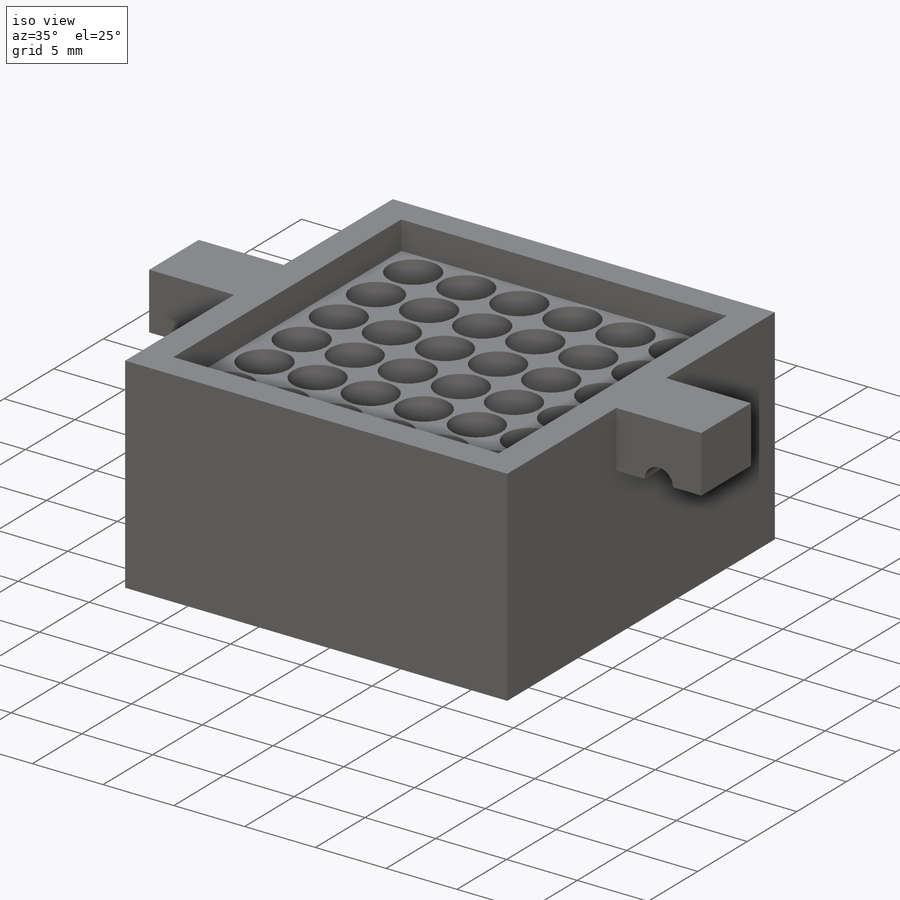
[diagram: iso view]
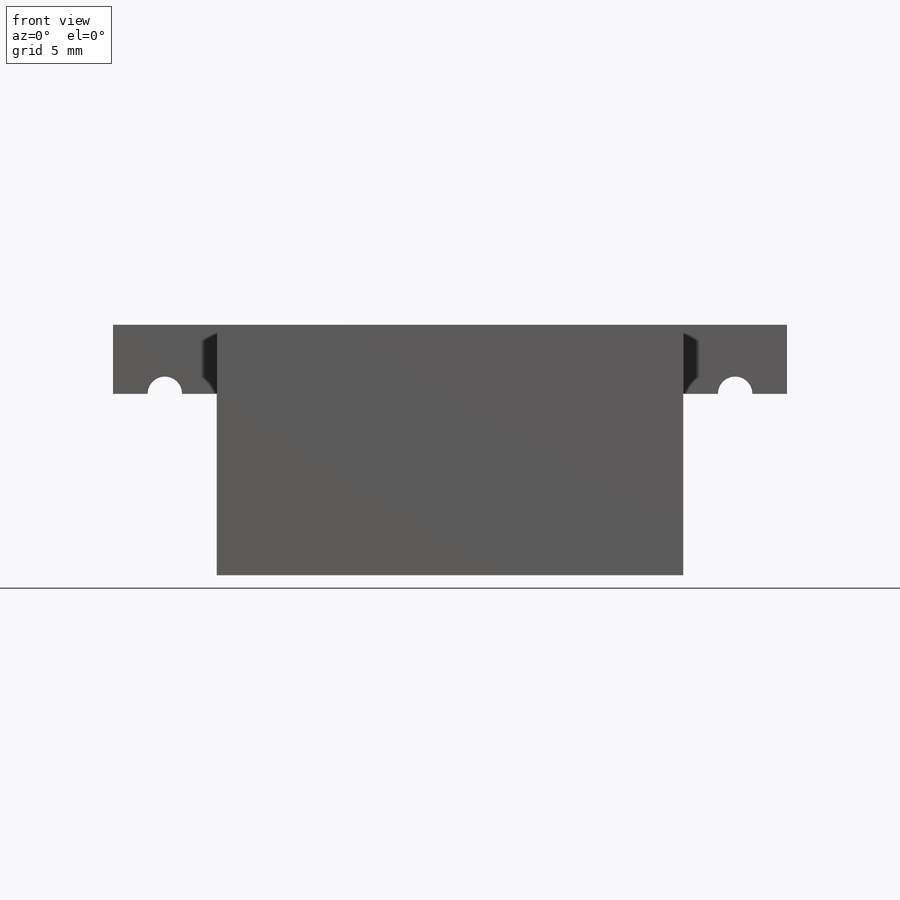
[diagram: front view]
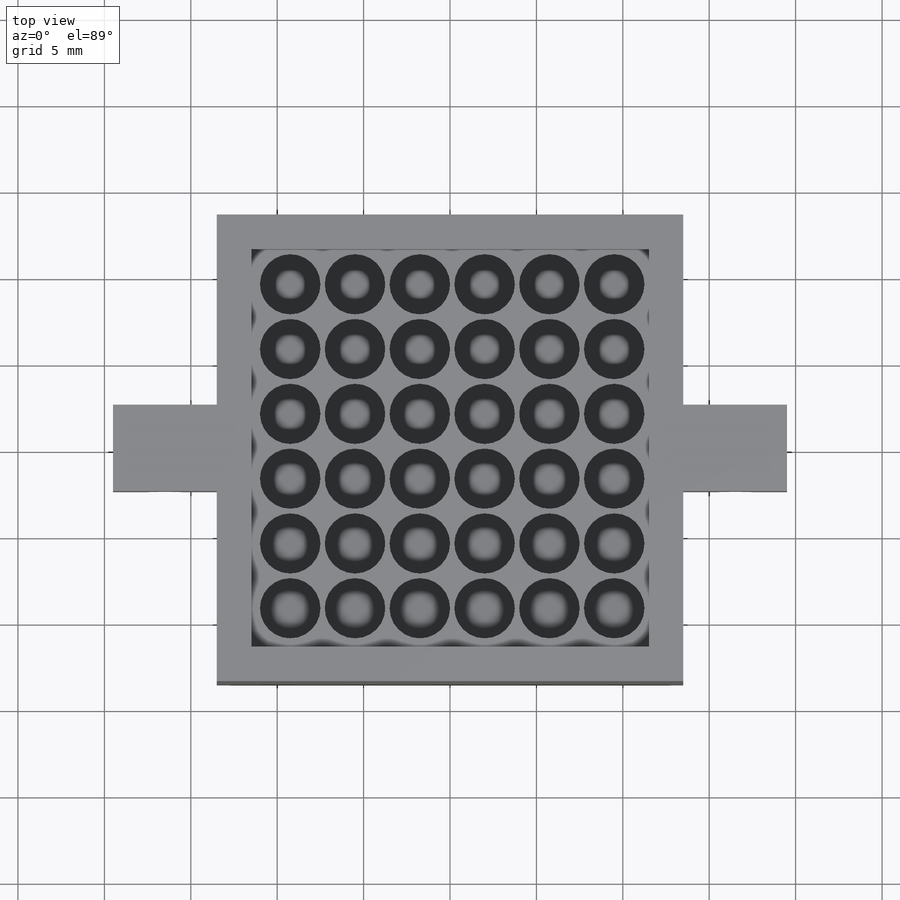
[diagram: top view]
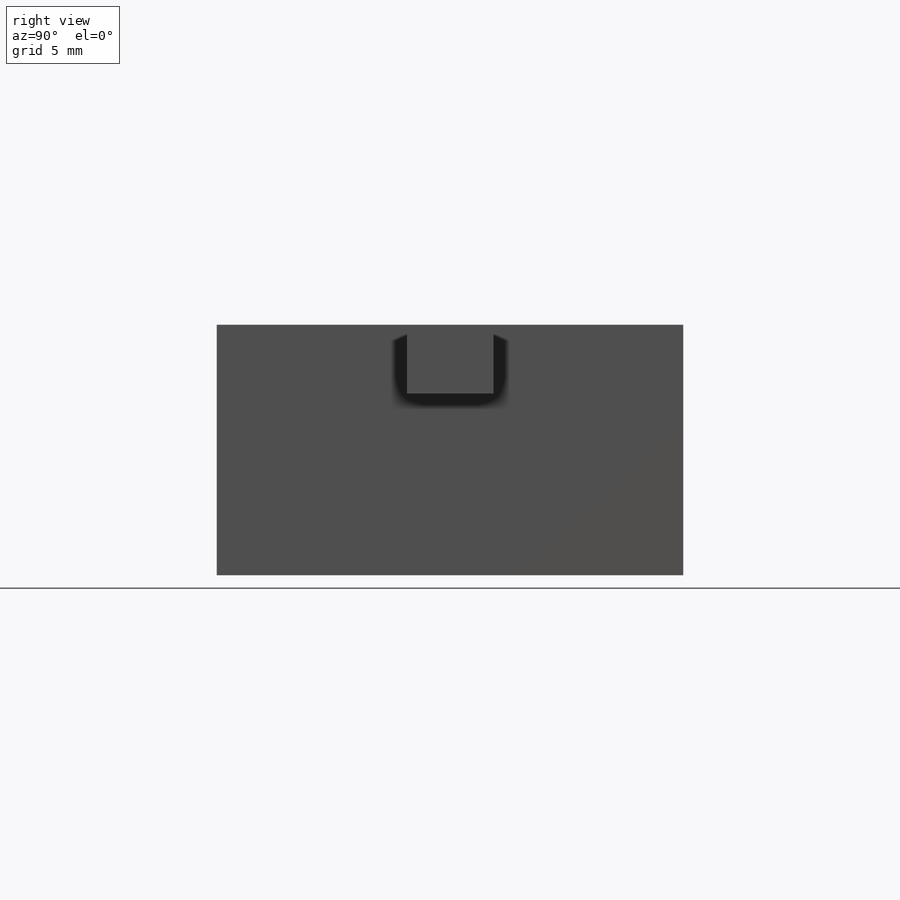
[diagram: right view]
SOLIDWORKS PART (.sldprt)
format: sldprt  version: not decoded by parser v0  size: 456,192 bytes
history: native  units: mm
features: sketch x10, extrude x7, cut_extrude x3, material x1, plane x1, mirror x1, pattern_linear x1 (+13 scaffold rows collapsed)
feature tree (37):
  scaffold x13  (default folders/planes/origin — collapsed)
  material  "Material <not specified>"
  sketch  "Sketch1"  dims[c1.D1=23.0mm c1.D2=18.5mm c2.D2=90.0deg c3.D2=2.0mm]
  extrude  "Boss-Extrude1"  Depth=2mm
  sketch  "Sketch2"
  extrude  "Boss-Extrude2"  Depth=2mm
  sketch  "Sketch12"  dims[D1=5.0mm]
  extrude  "Boss-Extrude9"  Depth=6mm
  plane  "Plane1"
  mirror  "Mirror1"
  sketch  "Sketch13"  dims[c1.D1=3.5mm c1.D2=2.5mm c1.D3=2.5mm c2.D2=2.0mm c2.D3=2.0mm]
  cut_extrude  "Cut-Extrude4"  [1 undecoded]
  pattern_linear  "LPattern3"  Count1=6 Count2=6 Spacing1=3.75mm Spacing2=3.75mm
  sketch  "Sketch15"  dims[D1=1.0mm D2=1.0mm]
  cut_extrude  "Cut-Extrude5"  [1 undecoded]
  sketch  "Sketch14"  dims[c1.D1=3.0mm c1.D2=3.0mm c2.D1=2.0mm]
  extrude  "Boss-Extrude10"  Depth=8.5mm
  sketch  "Sketch16"  dims[D1=7.5mm D2=1.0mm]
  extrude  "Boss-Extrude11"  [1 undecoded]
  sketch  "Sketch17"  dims[D1=8.5mm D2=4.25mm]
  sketch  "Sketch18"
  extrude  "Boss-Extrude12"  Depth=2mm
  cut_extrude  "Cut-Extrude10"  [1 undecoded]
  sketch  "Sketch19"  dims[D1=1.0mm D3=~1.552751mm D2=3.75mm]
  extrude  "Boss-Extrude13"  [1 undecoded]
decode coverage: 14 of 22 modeling features carry decoded parameters
note: ~ marks probable driven/reference dimensions
note: 5 parameter values undecoded
summary: no parameter record found for 5 features
note: suppression state not decoded; provenance and decode notes live in map.json
